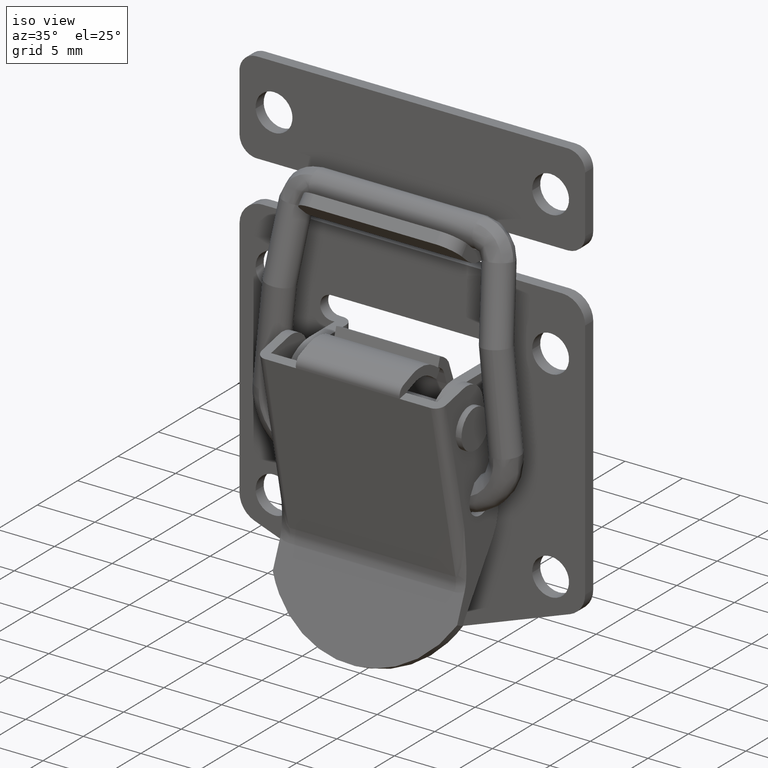
[diagram: clean part render]
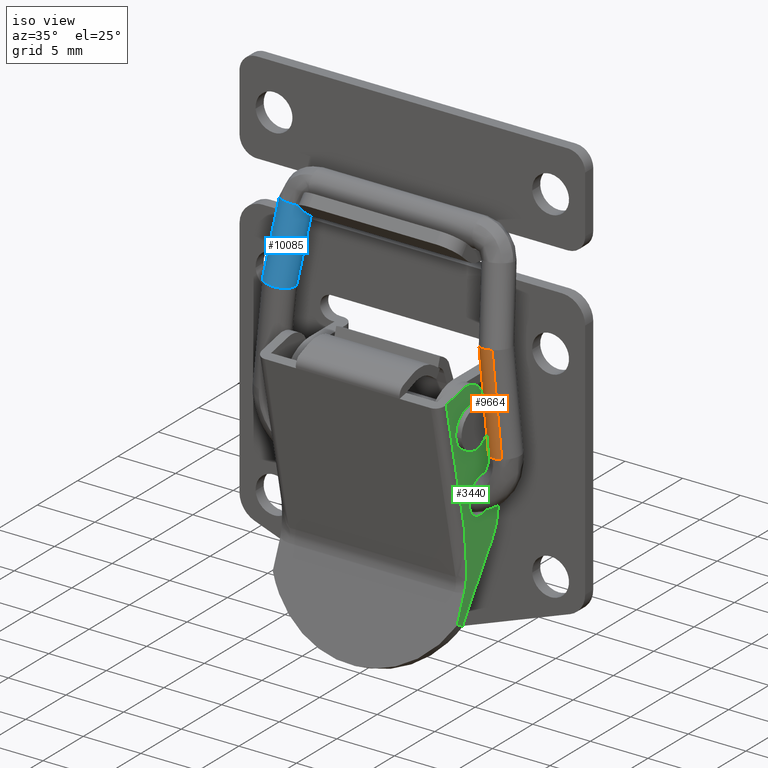
[diagram: same view with three faces highlighted in distinct colors, each labeled with its STEP entity id]
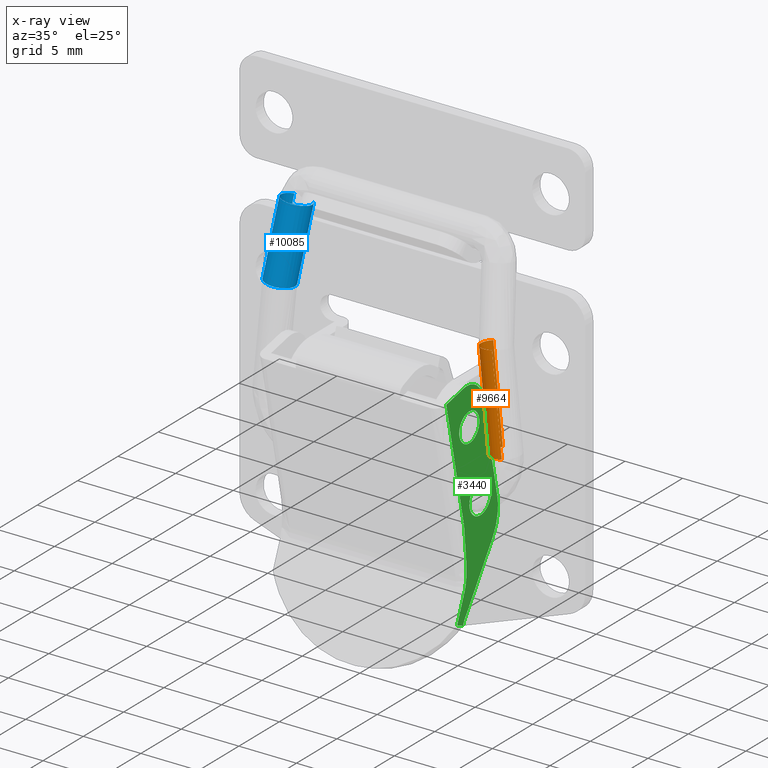
[diagram: x-ray of the same camera — body ghosted, the three highlighted faces saturated]
A machine part, iso view with three faces highlighted in distinct colors.
The next image is the same camera in x-ray (body ghosted, the three faces saturated) — at least one of them is partly hidden behind the body in this view.
Their STEP definitions:

[orange] entity #9664 — the highlighted face is a freeform B-spline surface patch.
#9456=CARTESIAN_POINT('',(-2.665735569086087,-9.837125914797973,-7.470613500350752));
#9457=VERTEX_POINT('',#9456);
#9475=CARTESIAN_POINT('',(-2.665735569077969,-10.679976843706021,-15.828468823461071));
#9476=VERTEX_POINT('',#9475);
#9477=CARTESIAN_POINT('',(-2.665735569077969,-10.679976843706021,-15.828468823461071));
#9478=CARTESIAN_POINT('',(-2.665735569086087,-9.837125914797973,-7.470613500350752));
#9479=QUASI_UNIFORM_CURVE('',1,(#9477,#9478),.UNSPECIFIED.,.F.,.U.);
#9480=EDGE_CURVE('',#9476,#9457,#9479,.T.);
#9512=CARTESIAN_POINT('',(-0.623863590414625,-9.344012778425348,-15.963194600571359));
#9513=VERTEX_POINT('',#9512);
#9529=CARTESIAN_POINT('',(-0.623863675381876,-8.521015210819833,-7.802207448867037));
#9530=VERTEX_POINT('',#9529);
#9531=CARTESIAN_POINT('',(-0.623863590414625,-9.344012778425348,-15.963194600571359));
#9532=CARTESIAN_POINT('',(-0.623863675381876,-8.521015210819833,-7.802207448867037));
#9533=QUASI_UNIFORM_CURVE('',1,(#9531,#9532),.UNSPECIFIED.,.F.,.U.);
#9534=EDGE_CURVE('',#9513,#9530,#9533,.T.);
#9567=CARTESIAN_POINT('',(-0.623863419625270,-9.365104701167297,-16.172344075138369));
#9568=CARTESIAN_POINT('',(-1.515426481067996,-8.493389487006789,-16.260252509727859));
#9569=CARTESIAN_POINT('',(-2.391563061442811,-9.380453333502798,-16.170796236784991));
#9570=CARTESIAN_POINT('',(-2.956822700822574,-9.952762949616133,-16.113081467516579));
#9571=CARTESIAN_POINT('',(-2.665735569092544,-10.701068599423301,-16.037618314871750));
#9572=CARTESIAN_POINT('',(-0.623863419625270,-8.478723667661718,-7.382836719464448));
#9573=CARTESIAN_POINT('',(-1.515426481067996,-7.607008453501211,-7.470745154053940));
#9574=CARTESIAN_POINT('',(-2.391563061442811,-8.494072299997219,-7.381288881111069));
#9575=CARTESIAN_POINT('',(-2.956822700822574,-9.066381916110553,-7.323574111842659));
#9576=CARTESIAN_POINT('',(-2.665735569092544,-9.814687565917721,-7.248110959197823));
#9584=(BOUNDED_SURFACE()B_SPLINE_SURFACE(2,1,((#9567,#9572),(#9568,#9573),(#9569,#9574),(#9570,#9575),(#9571,#9576)),.UNSPECIFIED.,.F.,.F.,.U.)B_SPLINE_SURFACE_WITH_KNOTS((3,2,3),(2,2),(0.0,1.570796326794897,2.701769682087222),(0.0,8.834088005674630),.UNSPECIFIED.)GEOMETRIC_REPRESENTATION_ITEM()RATIONAL_B_SPLINE_SURFACE(((1.0,1.0),(0.707106781186548,0.707106781186548),(1.0,1.0),(0.789116882454314,0.789116882454314),(0.881905454174416,0.881905454174416)))REPRESENTATION_ITEM('')SURFACE());
#9585=CARTESIAN_POINT('',(-2.750000000000087,-9.387406563755423,-7.507758674708748));
#9586=VERTEX_POINT('',#9585);
#9587=CARTESIAN_POINT('',(-2.750000000000087,-9.387406563755423,-7.507758674708748));
#9588=CARTESIAN_POINT('',(-2.750000000000087,-9.619685738646778,-7.484334397696326));
#9589=CARTESIAN_POINT('',(-2.665735569086087,-9.837125914797973,-7.470613500350753));
#9597=(BOUNDED_CURVE()B_SPLINE_CURVE(2,(#9587,#9588,#9589),.UNSPECIFIED.,.F.,.U.)B_SPLINE_CURVE_WITH_KNOTS((3,3),(0.0,0.061290226704729),.UNSPECIFIED.)CURVE()GEOMETRIC_REPRESENTATION_ITEM()RATIONAL_B_SPLINE_CURVE((1.0,0.928194032874583,0.891596097780119))REPRESENTATION_ITEM(''));
#9598=EDGE_CURVE('',#9586,#9457,#9597,.T.);
#9599=ORIENTED_EDGE('',*,*,#9598,.F.);
#9600=CARTESIAN_POINT('',(-0.623863675381876,-8.521015210819833,-7.802207448867037));
#9601=CARTESIAN_POINT('',(-0.988611727086130,-8.160840702515792,-7.803004549256881));
#9602=CARTESIAN_POINT('',(-1.500000145714833,-8.155868451940719,-7.753698855164799));
#9603=CARTESIAN_POINT('',(-2.750000042767775,-8.143714651657893,-7.633179675820663));
#9604=CARTESIAN_POINT('',(-2.750000000000087,-9.387406563755423,-7.507758674708748));
#9612=(BOUNDED_CURVE()B_SPLINE_CURVE(2,(#9600,#9601,#9602,#9603,#9604),.UNSPECIFIED.,.F.,.U.)B_SPLINE_CURVE_WITH_KNOTS((3,2,3),(0.626316766078469,0.750000000000000,1.0),.UNSPECIFIED.)CURVE()GEOMETRIC_REPRESENTATION_ITEM()RATIONAL_B_SPLINE_CURVE((0.853569641460995,0.855096078013862,1.0,0.707106781186547,1.0))REPRESENTATION_ITEM(''));
#9613=EDGE_CURVE('',#9530,#9586,#9612,.T.);
#9614=ORIENTED_EDGE('',*,*,#9613,.F.);
#9615=ORIENTED_EDGE('',*,*,#9534,.F.);
#9616=CARTESIAN_POINT('',(-1.500000000000085,-8.987384835530618,-15.999158873858640));
#9617=VERTEX_POINT('',#9616);
#9618=CARTESIAN_POINT('',(-1.500000000000085,-8.987384835530618,-15.999158873858640));
#9619=CARTESIAN_POINT('',(-0.988611777745030,-8.987384835530619,-15.999158873858633));
#9620=CARTESIAN_POINT('',(-0.623863590414625,-9.344012778425348,-15.963194600571354));
#9628=(BOUNDED_CURVE()B_SPLINE_CURVE(2,(#9618,#9619,#9620),.UNSPECIFIED.,.F.,.U.)B_SPLINE_CURVE_WITH_KNOTS((3,3),(0.500000000000000,0.623683184598955),.UNSPECIFIED.)CURVE()GEOMETRIC_REPRESENTATION_ITEM()RATIONAL_B_SPLINE_CURVE((1.0,0.855096135798855,0.853569642678447))REPRESENTATION_ITEM(''));
#9629=EDGE_CURVE('',#9617,#9513,#9628,.T.);
#9630=ORIENTED_EDGE('',*,*,#9629,.F.);
#9631=CARTESIAN_POINT('',(-2.720885296313254,-9.964215679411154,-15.900650016103450));
#9632=VERTEX_POINT('',#9631);
#9633=CARTESIAN_POINT('',(-2.720885296313253,-9.964215679411154,-15.900650016103441));
#9634=CARTESIAN_POINT('',(-2.505198197511082,-8.987384835530619,-15.999158873858637));
#9635=CARTESIAN_POINT('',(-1.500000000000085,-8.987384835530618,-15.999158873858640));
#9643=(BOUNDED_CURVE()B_SPLINE_CURVE(2,(#9633,#9634,#9635),.UNSPECIFIED.,.F.,.U.)B_SPLINE_CURVE_WITH_KNOTS((3,3),(0.286726879898040,0.500000000000000),.UNSPECIFIED.)CURVE()GEOMETRIC_REPRESENTATION_ITEM()RATIONAL_B_SPLINE_CURVE((0.926585904490210,0.750134997467796,1.0))REPRESENTATION_ITEM(''));
#9644=EDGE_CURVE('',#9632,#9617,#9643,.T.);
#9645=ORIENTED_EDGE('',*,*,#9644,.F.);
#9646=CARTESIAN_POINT('',(-2.665735569077968,-10.679976843706024,-15.828468823461062));
#9647=CARTESIAN_POINT('',(-2.750000000000085,-10.463355966823071,-15.850314033773842));
#9648=CARTESIAN_POINT('',(-2.750000000000085,-10.231076791908560,-15.873738310788600));
#9649=CARTESIAN_POINT('',(-2.750000000000085,-10.096074009005301,-15.887352715031479));
#9650=CARTESIAN_POINT('',(-2.720885296313253,-9.964215679411154,-15.900650016103441));
#9658=(BOUNDED_CURVE()B_SPLINE_CURVE(2,(#9646,#9647,#9648,#9649,#9650),.UNSPECIFIED.,.F.,.U.)B_SPLINE_CURVE_WITH_KNOTS((3,2,3),(0.188709773289600,0.250000000000000,0.286726879898040),.UNSPECIFIED.)CURVE()GEOMETRIC_REPRESENTATION_ITEM()RATIONAL_B_SPLINE_CURVE((0.891596097773345,0.928194032867938,1.0,0.956971783718752,0.926585904490210))REPRESENTATION_ITEM(''));
#9659=EDGE_CURVE('',#9476,#9632,#9658,.T.);
#9660=ORIENTED_EDGE('',*,*,#9659,.F.);
#9661=ORIENTED_EDGE('',*,*,#9480,.T.);
#9662=EDGE_LOOP('',(#9599,#9614,#9615,#9630,#9645,#9660,#9661));
#9663=FACE_OUTER_BOUND('',#9662,.T.);
#9664=ADVANCED_FACE('',(#9663),#9584,.T.);

[blue] entity #10085 — the highlighted face is a freeform B-spline surface patch.
#9891=CARTESIAN_POINT('',(0.559090426053287,7.914331907762819,-1.786256898987540));
#9892=VERTEX_POINT('',#9891);
#9893=CARTESIAN_POINT('',(0.621933609818012,9.622147260174559,-1.626388908902315));
#9894=VERTEX_POINT('',#9893);
#9906=CARTESIAN_POINT('',(-0.623863346662186,8.521011972913701,-7.802205059802028));
#9907=VERTEX_POINT('',#9906);
#9908=CARTESIAN_POINT('',(0.559090426053287,7.914331907762819,-1.786256898987540));
#9909=CARTESIAN_POINT('',(-0.623863346662186,8.521011972913701,-7.802205059802028));
#9910=QUASI_UNIFORM_CURVE('',1,(#9908,#9909),.UNSPECIFIED.,.F.,.U.);
#9911=EDGE_CURVE('',#9892,#9907,#9910,.T.);
#9928=CARTESIAN_POINT('',(-0.559788230269742,10.228254284312211,-7.636278146659118));
#9929=VERTEX_POINT('',#9928);
#9943=CARTESIAN_POINT('',(0.621933609818012,9.622147260174559,-1.626388908902315));
#9944=CARTESIAN_POINT('',(-0.559788230269742,10.228254284312211,-7.636278146659118));
#9945=QUASI_UNIFORM_CURVE('',1,(#9943,#9944),.UNSPECIFIED.,.F.,.U.);
#9946=EDGE_CURVE('',#9894,#9929,#9945,.T.);
#9951=CARTESIAN_POINT('',(0.589654437325110,7.898657320822148,-1.630829054097556));
#9952=CARTESIAN_POINT('',(-0.285320318797206,7.009766139034172,-1.548417628383229));
#9953=CARTESIAN_POINT('',(-1.145155616933888,7.879951209151303,-1.291588494865547));
#9954=CARTESIAN_POINT('',(-2.004990915070571,8.750136279268434,-1.034759361347864));
#9955=CARTESIAN_POINT('',(-1.130016158948256,9.639027461056410,-1.117170787062190));
#9956=CARTESIAN_POINT('',(-0.255041402825940,10.527918642844385,-1.199582212776516));
#9957=CARTESIAN_POINT('',(0.604793895310743,9.657733572727254,-1.456411346294199));
#9958=CARTESIAN_POINT('',(0.629402012133185,9.632829249877295,-1.463761685754216));
#9959=CARTESIAN_POINT('',(0.652537674679100,9.606510736980404,-1.470965101457707));
#9960=CARTESIAN_POINT('',(-0.694748949693727,8.557365747065635,-8.162695530090796));
#9961=CARTESIAN_POINT('',(-1.569723705816043,7.668474565277659,-8.080284104376469));
#9962=CARTESIAN_POINT('',(-2.429559003952726,8.538659635394790,-7.823454970858786));
#9963=CARTESIAN_POINT('',(-3.289394302089407,9.408844705511921,-7.566625837341103));
#9964=CARTESIAN_POINT('',(-2.414419545967093,10.297735887299901,-7.649037263055429));
#9965=CARTESIAN_POINT('',(-1.539444789844776,11.186627069087873,-7.731448688769754));
#9966=CARTESIAN_POINT('',(-0.679609491708094,10.316441998970740,-7.988277822287437));
#9967=CARTESIAN_POINT('',(-0.655001374885652,10.291537676120777,-7.995628161747455));
#9968=CARTESIAN_POINT('',(-0.631865712339737,10.265219163223890,-8.002831577450948));
#9976=(BOUNDED_SURFACE()B_SPLINE_SURFACE(2,1,((#9951,#9960),(#9952,#9961),(#9953,#9962),(#9954,#9963),(#9955,#9964),(#9956,#9965),(#9957,#9966),(#9958,#9967),(#9959,#9968)),.UNSPECIFIED.,.F.,.F.,.U.)B_SPLINE_SURFACE_WITH_KNOTS((3,2,2,2,3),(2,2),(0.0,1.570796326794897,3.141592653589793,4.712388980384690,4.775220833456485),(0.0,6.689459508181060),.UNSPECIFIED.)GEOMETRIC_REPRESENTATION_ITEM()RATIONAL_B_SPLINE_SURFACE(((1.0,1.0),(0.707106781186548,0.707106781186548),(1.0,1.0),(0.707106781186548,0.707106781186548),(1.0,1.0),(0.707106781186548,0.707106781186548),(1.0,1.0),(0.988284271247462,0.988284271247462),(0.977505800795127,0.977505800795127)))REPRESENTATION_ITEM('')SURFACE());
#9977=CARTESIAN_POINT('',(-0.300743701668693,10.028208551392041,-1.404007471156516));
#9978=VERTEX_POINT('',#9977);
#9979=CARTESIAN_POINT('',(0.621933609818012,9.622147260174559,-1.626388908902315));
#9980=CARTESIAN_POINT('',(0.604217606075224,9.642401721561649,-1.620862727415135));
#9981=CARTESIAN_POINT('',(0.585809940701126,9.662037974577606,-1.615262883448715));
#9982=CARTESIAN_POINT('',(0.339625690324634,9.906765680269512,-1.542174419585707));
#9983=CARTESIAN_POINT('',(0.020428740616923,10.034523817668290,-1.466524832017987));
#9984=CARTESIAN_POINT('',(-0.300743701668693,10.028208551392041,-1.404007471156516));
#9985=B_SPLINE_CURVE_WITH_KNOTS('',3,(#9979,#9980,#9981,#9982,#9983,#9984),.UNSPECIFIED.,.F.,.U.,(4,2,4),(0.864499884512398,0.875000000000000,1.0),.UNSPECIFIED.);
#9986=EDGE_CURVE('',#9894,#9978,#9985,.T.);
#9987=ORIENTED_EDGE('',*,*,#9986,.F.);
#9988=ORIENTED_EDGE('',*,*,#9946,.T.);
#9989=CARTESIAN_POINT('',(-2.749999999990737,9.387403500647142,-7.507758674654645));
#9990=VERTEX_POINT('',#9989);
#9991=CARTESIAN_POINT('',(-2.749999999990737,9.387403500647142,-7.507758674654645));
#9992=CARTESIAN_POINT('',(-2.749999999990711,10.631095457025085,-7.382338111584609));
#9993=CARTESIAN_POINT('',(-1.499999999990708,10.643249150719511,-7.502856236508315));
#9994=CARTESIAN_POINT('',(-0.933255962445846,10.648759577467883,-7.557498579481591));
#9995=CARTESIAN_POINT('',(-0.559788230269742,10.228254284312214,-7.636278146659118));
#10003=(BOUNDED_CURVE()B_SPLINE_CURVE(2,(#9991,#9992,#9993,#9994,#9995),.UNSPECIFIED.,.F.,.U.)B_SPLINE_CURVE_WITH_KNOTS((3,2,3),(0.0,0.250000000000000,0.384954613369994),.UNSPECIFIED.)CURVE()GEOMETRIC_REPRESENTATION_ITEM()RATIONAL_B_SPLINE_CURVE((1.0,0.707106781186547,1.0,0.841890835585350,0.854482160401355))REPRESENTATION_ITEM(''));
#10004=EDGE_CURVE('',#9990,#9929,#10003,.T.);
#10005=ORIENTED_EDGE('',*,*,#10004,.F.);
#10006=CARTESIAN_POINT('',(-2.495381589901699,8.637576269852023,-7.608175071378957));
#10007=VERTEX_POINT('',#10006);
#10008=CARTESIAN_POINT('',(-2.495381589901699,8.637576269852024,-7.608175071378958));
#10009=CARTESIAN_POINT('',(-2.750000021694345,8.968597789092144,-7.549993902637190));
#10010=CARTESIAN_POINT('',(-2.749999999990737,9.387403500647142,-7.507758674654645));
#10018=(BOUNDED_CURVE()B_SPLINE_CURVE(2,(#10008,#10009,#10010),.UNSPECIFIED.,.F.,.U.)B_SPLINE_CURVE_WITH_KNOTS((3,3),(0.895516751972892,1.0),.UNSPECIFIED.)CURVE()GEOMETRIC_REPRESENTATION_ITEM()RATIONAL_B_SPLINE_CURVE((0.857498658609603,0.877590260693024,1.0))REPRESENTATION_ITEM(''));
#10019=EDGE_CURVE('',#10007,#9990,#10018,.T.);
#10020=ORIENTED_EDGE('',*,*,#10019,.F.);
#10021=CARTESIAN_POINT('',(-0.688190985470267,8.461738481876349,-7.801915380660550));
#10022=VERTEX_POINT('',#10021);
#10023=CARTESIAN_POINT('',(-0.688190985470267,8.461738481876349,-7.801915380660550));
#10024=CARTESIAN_POINT('',(-1.038851432757227,8.160348898854197,-7.798157147542378));
#10025=CARTESIAN_POINT('',(-1.499999947458240,8.155865247831278,-7.753696612306171));
#10026=CARTESIAN_POINT('',(-2.120215994865505,8.149835016296883,-7.693899959924691));
#10027=CARTESIAN_POINT('',(-2.495381589901699,8.637576269852023,-7.608175071378957));
#10035=(BOUNDED_CURVE()B_SPLINE_CURVE(2,(#10023,#10024,#10025,#10026,#10027),.UNSPECIFIED.,.F.,.U.)B_SPLINE_CURVE_WITH_KNOTS((3,2,3),(0.636857024645209,0.750000000000000,0.895516751972892),.UNSPECIFIED.)CURVE()GEOMETRIC_REPRESENTATION_ITEM()RATIONAL_B_SPLINE_CURVE((0.854871072978338,0.867444759048817,1.0,0.829516520493524,0.857498658609603))REPRESENTATION_ITEM(''));
#10036=EDGE_CURVE('',#10022,#10007,#10035,.T.);
#10037=ORIENTED_EDGE('',*,*,#10036,.F.);
#10038=CARTESIAN_POINT('',(-0.623863346662186,8.521011972913701,-7.802205059802028));
#10039=CARTESIAN_POINT('',(-0.654997937476360,8.490267695475254,-7.802272151578212));
#10040=CARTESIAN_POINT('',(-0.688190985470267,8.461738481876349,-7.801915380660550));
#10048=(BOUNDED_CURVE()B_SPLINE_CURVE(2,(#10038,#10039,#10040),.UNSPECIFIED.,.F.,.U.)B_SPLINE_CURVE_WITH_KNOTS((3,3),(0.626316751730463,0.636857024645209),.UNSPECIFIED.)CURVE()GEOMETRIC_REPRESENTATION_ITEM()RATIONAL_B_SPLINE_CURVE((0.853569641106845,0.853699722460892,0.854871072978338))REPRESENTATION_ITEM(''));
#10049=EDGE_CURVE('',#9907,#10022,#10048,.T.);
#10050=ORIENTED_EDGE('',*,*,#10049,.F.);
#10051=ORIENTED_EDGE('',*,*,#9911,.F.);
#10052=CARTESIAN_POINT('',(-0.300743701668655,7.540824638636140,-1.654848597296395));
#10053=VERTEX_POINT('',#10052);
#10054=CARTESIAN_POINT('',(-0.300743701668655,7.540824638636140,-1.654848597296395));
#10055=CARTESIAN_POINT('',(0.016848153817867,7.547058791063718,-1.716670064043462));
#10056=CARTESIAN_POINT('',(0.332506104904079,7.684329085796945,-1.764896867646791));
#10057=CARTESIAN_POINT('',(0.559090426053287,7.914331907762819,-1.786256898987540));
#10058=B_SPLINE_CURVE_WITH_KNOTS('',3,(#10054,#10055,#10056,#10057),.UNSPECIFIED.,.F.,.U.,(4,4),(0.500000000000000,0.623610948308786),.UNSPECIFIED.);
#10059=EDGE_CURVE('',#10053,#9892,#10058,.T.);
#10060=ORIENTED_EDGE('',*,*,#10059,.F.);
#10061=CARTESIAN_POINT('',(-1.194975123899901,9.618315640442347,-1.269504728881935));
#10062=VERTEX_POINT('',#10061);
#10063=CARTESIAN_POINT('',(-1.194975123899901,9.618315640442347,-1.269504728881935));
#10064=CARTESIAN_POINT('',(-1.405641633252141,9.386127485890823,-1.251495101052143));
#10065=CARTESIAN_POINT('',(-1.527486365707520,9.073009385147529,-1.259112486449652));
#10066=CARTESIAN_POINT('',(-1.527486365707510,8.434837544864640,-1.323469155424792));
#10067=CARTESIAN_POINT('',(-1.395276510330094,8.113840040485171,-1.381837548040126));
#10068=CARTESIAN_POINT('',(-0.941087006032661,7.662291076662929,-1.516684402034490));
#10069=CARTESIAN_POINT('',(-0.621904180101122,7.534520180202130,-1.592332499044445));
#10070=CARTESIAN_POINT('',(-0.300743701668655,7.540824638636140,-1.654848597296395));
#10071=B_SPLINE_CURVE_WITH_KNOTS('',3,(#10063,#10064,#10065,#10066,#10067,#10068,#10069,#10070),.UNSPECIFIED.,.F.,.U.,(4,2,2,4),(0.129999936112298,0.250000000000000,0.375000000000000,0.500000000000000),.UNSPECIFIED.);
#10072=EDGE_CURVE('',#10062,#10053,#10071,.T.);
#10073=ORIENTED_EDGE('',*,*,#10072,.F.);
#10074=CARTESIAN_POINT('',(-0.300743701668693,10.028208551392041,-1.404007471156516));
#10075=CARTESIAN_POINT('',(-0.621904180101160,10.021904092958019,-1.341491372904564));
#10076=CARTESIAN_POINT('',(-0.941087006032695,9.881601923229990,-1.292877200760706));
#10077=CARTESIAN_POINT('',(-1.177265432198859,9.637524097347406,-1.271050016989475));
#10078=CARTESIAN_POINT('',(-1.186197294261120,9.627990211265585,-1.270255135035396));
#10079=CARTESIAN_POINT('',(-1.194975123899901,9.618315640442347,-1.269504728881935));
#10080=B_SPLINE_CURVE_WITH_KNOTS('',3,(#10074,#10075,#10076,#10077,#10078,#10079),.UNSPECIFIED.,.F.,.U.,(4,2,4),(0.0,0.125000000000000,0.129999936112298),.UNSPECIFIED.);
#10081=EDGE_CURVE('',#9978,#10062,#10080,.T.);
#10082=ORIENTED_EDGE('',*,*,#10081,.F.);
#10083=EDGE_LOOP('',(#9987,#9988,#10005,#10020,#10037,#10050,#10051,#10060,#10073,#10082));
#10084=FACE_OUTER_BOUND('',#10083,.T.);
#10085=ADVANCED_FACE('',(#10084),#9976,.T.);

[green] entity #3440 — the highlighted face is a freeform B-spline surface patch.
#1287=CARTESIAN_POINT('',(-4.108363288911000,-8.0,-14.009751479011360));
#1288=VERTEX_POINT('',#1287);
#1294=CARTESIAN_POINT('',(-2.860694790894970,-8.0,-15.183440804407979));
#1295=VERTEX_POINT('',#1294);
#1296=CARTESIAN_POINT('',(-2.860694790894970,-8.0,-15.183440804407979));
#1297=CARTESIAN_POINT('',(-4.036577374178090,-8.0,-15.183440804407981));
#1298=CARTESIAN_POINT('',(-4.108363288911000,-8.0,-14.009751479011365));
#1306=(BOUNDED_CURVE()B_SPLINE_CURVE(2,(#1296,#1297,#1298),.UNSPECIFIED.,.F.,.U.)B_SPLINE_CURVE_WITH_KNOTS((3,3),(0.500000000000000,0.739332962190852),.UNSPECIFIED.)CURVE()GEOMETRIC_REPRESENTATION_ITEM()RATIONAL_B_SPLINE_CURVE((1.0,0.719603993343052,0.976072041563651))REPRESENTATION_ITEM(''));
#1307=EDGE_CURVE('',#1295,#1288,#1306,.T.);
#1309=CARTESIAN_POINT('',(-1.619432882943403,-8.0,-13.785898011061651));
#1310=VERTEX_POINT('',#1309);
#1311=CARTESIAN_POINT('',(-1.619432882943403,-8.0,-13.785898011061651));
#1312=CARTESIAN_POINT('',(-1.610694790894970,-8.0,-13.859410654817445));
#1313=CARTESIAN_POINT('',(-1.610694790894970,-8.0,-13.933440804407979));
#1314=CARTESIAN_POINT('',(-1.610694790894969,-8.0,-15.183440804407979));
#1315=CARTESIAN_POINT('',(-2.860694790894970,-8.0,-15.183440804407979));
#1323=(BOUNDED_CURVE()B_SPLINE_CURVE(2,(#1311,#1312,#1313,#1314,#1315),.UNSPECIFIED.,.F.,.U.)B_SPLINE_CURVE_WITH_KNOTS((3,2,3),(0.229562473508734,0.250000000000000,0.500000000000000),.UNSPECIFIED.)CURVE()GEOMETRIC_REPRESENTATION_ITEM()RATIONAL_B_SPLINE_CURVE((0.956026754174341,0.976055948325551,1.0,0.707106781186548,1.0))REPRESENTATION_ITEM(''));
#1324=EDGE_CURVE('',#1310,#1295,#1323,.T.);
#1368=CARTESIAN_POINT('',(-2.860694790894970,-8.0,-12.683440804407979));
#1369=VERTEX_POINT('',#1368);
#1370=CARTESIAN_POINT('',(-2.860694790894970,-8.0,-12.683440804407979));
#1371=CARTESIAN_POINT('',(-1.750476633501477,-8.0,-12.683440804407979));
#1372=CARTESIAN_POINT('',(-1.619432882943403,-8.0,-13.785898011061651));
#1380=(BOUNDED_CURVE()B_SPLINE_CURVE(2,(#1370,#1371,#1372),.UNSPECIFIED.,.F.,.U.)B_SPLINE_CURVE_WITH_KNOTS((3,3),(0.0,0.229562473508734),.UNSPECIFIED.)CURVE()GEOMETRIC_REPRESENTATION_ITEM()RATIONAL_B_SPLINE_CURVE((1.0,0.731050832860996,0.956026754174341))REPRESENTATION_ITEM(''));
#1381=EDGE_CURVE('',#1369,#1310,#1380,.T.);
#1383=CARTESIAN_POINT('',(-4.108363288911000,-8.0,-14.009751479011356));
#1384=CARTESIAN_POINT('',(-4.110694790894970,-8.0,-13.971631758716542));
#1385=CARTESIAN_POINT('',(-4.110694790894970,-8.0,-13.933440804407979));
#1386=CARTESIAN_POINT('',(-4.110694790894970,-8.0,-12.683440804407979));
#1387=CARTESIAN_POINT('',(-2.860694790894970,-8.0,-12.683440804407979));
#1395=(BOUNDED_CURVE()B_SPLINE_CURVE(2,(#1383,#1384,#1385,#1386,#1387),.UNSPECIFIED.,.F.,.U.)B_SPLINE_CURVE_WITH_KNOTS((3,2,3),(0.739332962190852,0.750000000000000,1.0),.UNSPECIFIED.)CURVE()GEOMETRIC_REPRESENTATION_ITEM()RATIONAL_B_SPLINE_CURVE((0.976072041563649,0.987502787843495,1.0,0.707106781186548,1.0))REPRESENTATION_ITEM(''));
#1396=EDGE_CURVE('',#1288,#1369,#1395,.T.);
#1659=CARTESIAN_POINT('',(-2.847481977861532,-8.0,-20.082415528504061));
#1660=VERTEX_POINT('',#1659);
#1666=CARTESIAN_POINT('',(-1.500000000000085,-8.0,-21.350000000000001));
#1667=VERTEX_POINT('',#1666);
#1668=CARTESIAN_POINT('',(-1.500000000000085,-8.0,-21.350000000000001));
#1669=CARTESIAN_POINT('',(-2.769953190073500,-8.0,-21.349999999999998));
#1670=CARTESIAN_POINT('',(-2.847481977861532,-8.0,-20.082415528504054));
#1678=(BOUNDED_CURVE()B_SPLINE_CURVE(2,(#1668,#1669,#1670),.UNSPECIFIED.,.F.,.U.)B_SPLINE_CURVE_WITH_KNOTS((3,3),(0.500000000000000,0.739332962208163),.UNSPECIFIED.)CURVE()GEOMETRIC_REPRESENTATION_ITEM()RATIONAL_B_SPLINE_CURVE((1.0,0.719603993322771,0.976072041600751))REPRESENTATION_ITEM(''));
#1679=EDGE_CURVE('',#1667,#1660,#1678,.T.);
#1681=CARTESIAN_POINT('',(-0.159437139421395,-8.0,-19.840653783110231));
#1682=VERTEX_POINT('',#1681);
#1683=CARTESIAN_POINT('',(-0.159437139421395,-8.0,-19.840653783110231));
#1684=CARTESIAN_POINT('',(-0.150000000000085,-8.0,-19.920047438365685));
#1685=CARTESIAN_POINT('',(-0.150000000000085,-8.0,-20.0));
#1686=CARTESIAN_POINT('',(-0.150000000000085,-8.0,-21.349999999999998));
#1687=CARTESIAN_POINT('',(-1.500000000000085,-8.0,-21.350000000000001));
#1695=(BOUNDED_CURVE()B_SPLINE_CURVE(2,(#1683,#1684,#1685,#1686,#1687),.UNSPECIFIED.,.F.,.U.)B_SPLINE_CURVE_WITH_KNOTS((3,2,3),(0.229562473489639,0.250000000000000,0.500000000000000),.UNSPECIFIED.)CURVE()GEOMETRIC_REPRESENTATION_ITEM()RATIONAL_B_SPLINE_CURVE((0.956026754136914,0.976055948303180,1.0,0.707106781186548,1.0))REPRESENTATION_ITEM(''));
#1696=EDGE_CURVE('',#1682,#1667,#1695,.T.);
#1740=CARTESIAN_POINT('',(-1.500000000000085,-8.0,-18.649999999999999));
#1741=VERTEX_POINT('',#1740);
#1742=CARTESIAN_POINT('',(-1.500000000000085,-8.0,-18.649999999999999));
#1743=CARTESIAN_POINT('',(-0.300964390151542,-8.000000000000002,-18.650000000000002));
#1744=CARTESIAN_POINT('',(-0.159437139421395,-8.0,-19.840653783110234));
#1752=(BOUNDED_CURVE()B_SPLINE_CURVE(2,(#1742,#1743,#1744),.UNSPECIFIED.,.F.,.U.)B_SPLINE_CURVE_WITH_KNOTS((3,3),(0.0,0.229562473489639),.UNSPECIFIED.)CURVE()GEOMETRIC_REPRESENTATION_ITEM()RATIONAL_B_SPLINE_CURVE((1.0,0.731050832883368,0.956026754136913))REPRESENTATION_ITEM(''));
#1753=EDGE_CURVE('',#1741,#1682,#1752,.T.);
#1755=CARTESIAN_POINT('',(-2.847481977861532,-8.0,-20.082415528504065));
#1756=CARTESIAN_POINT('',(-2.850000000000084,-8.0,-20.041246230585465));
#1757=CARTESIAN_POINT('',(-2.850000000000085,-8.0,-20.0));
#1758=CARTESIAN_POINT('',(-2.850000000000084,-8.0,-18.649999999999999));
#1759=CARTESIAN_POINT('',(-1.500000000000085,-8.0,-18.649999999999999));
#1767=(BOUNDED_CURVE()B_SPLINE_CURVE(2,(#1755,#1756,#1757,#1758,#1759),.UNSPECIFIED.,.F.,.U.)B_SPLINE_CURVE_WITH_KNOTS((3,2,3),(0.739332962208163,0.750000000000000,1.0),.UNSPECIFIED.)CURVE()GEOMETRIC_REPRESENTATION_ITEM()RATIONAL_B_SPLINE_CURVE((0.976072041600750,0.987502787863776,1.0,0.707106781186548,1.0))REPRESENTATION_ITEM(''));
#1768=EDGE_CURVE('',#1660,#1741,#1767,.T.);
#1991=CARTESIAN_POINT('',(-3.641978941189605,-8.0,-29.224509765076149));
#1992=VERTEX_POINT('',#1991);
#2008=CARTESIAN_POINT('',(-4.371580289002230,-8.0,-28.894773704005601));
#2009=VERTEX_POINT('',#2008);
#2010=CARTESIAN_POINT('',(-4.371580289002230,-8.0,-28.894773704005601));
#2011=CARTESIAN_POINT('',(-3.641978941189605,-8.0,-29.224509765076149));
#2012=QUASI_UNIFORM_CURVE('',1,(#2010,#2011),.UNSPECIFIED.,.F.,.U.);
#2013=EDGE_CURVE('',#2009,#1992,#2012,.T.);
#2169=CARTESIAN_POINT('',(-3.512470993988905,-8.0,-21.429467577154099));
#2170=VERTEX_POINT('',#2169);
#2171=CARTESIAN_POINT('',(-3.454185830523615,-8.0,-26.624142172437448));
#2172=VERTEX_POINT('',#2171);
#2173=CARTESIAN_POINT('',(-3.512470993988905,-8.0,-21.429467577154099));
#2174=CARTESIAN_POINT('',(-3.500633632794143,-8.0,-21.537929959951459));
#2175=CARTESIAN_POINT('',(-3.488825989011703,-8.0,-21.646118562584650));
#2176=CARTESIAN_POINT('',(-3.465280324558724,-8.0,-21.862753233958980));
#2177=CARTESIAN_POINT('',(-3.453555794553679,-8.000000000000002,-21.971073719393051));
#2178=CARTESIAN_POINT('',(-3.418680230244931,-8.0,-22.296054609699041));
#2179=CARTESIAN_POINT('',(-3.395817929859113,-7.999999999999998,-22.512733842665028));
#2180=CARTESIAN_POINT('',(-3.351837356744947,-8.0,-22.946206035162540));
#2181=CARTESIAN_POINT('',(-3.330707141642842,-8.0,-23.162998215941979));
#2182=CARTESIAN_POINT('',(-3.291575889618473,-8.0,-23.596786628558050));
#2183=CARTESIAN_POINT('',(-3.273548259482809,-8.0,-23.813781126273760));
#2184=CARTESIAN_POINT('',(-3.242969538807702,-8.0,-24.248127242211030));
#2185=CARTESIAN_POINT('',(-3.230352557616322,-8.0,-24.465474563758971));
#2186=CARTESIAN_POINT('',(-3.215171108588335,-8.0,-24.900824722731450));
#2187=CARTESIAN_POINT('',(-3.212457690161398,-8.000000000000002,-25.118817847214210));
#2188=CARTESIAN_POINT('',(-3.223327644942243,-8.0,-25.446781764051600));
#2189=CARTESIAN_POINT('',(-3.229511773054514,-8.0,-25.556406956805269));
#2190=CARTESIAN_POINT('',(-3.249113320467211,-8.0,-25.775546076542561));
#2191=CARTESIAN_POINT('',(-3.262476997634922,-8.0,-25.884329159427850));
#2192=CARTESIAN_POINT('',(-3.316582028534222,-8.000000000000002,-26.207584951275450));
#2193=CARTESIAN_POINT('',(-3.371292567559284,-7.999999999999998,-26.418974095715530));
#2194=CARTESIAN_POINT('',(-3.454185830523615,-8.0,-26.624142172437448));
#2195=B_SPLINE_CURVE_WITH_KNOTS('',3,(#2173,#2174,#2175,#2176,#2177,#2178,#2179,#2180,#2181,#2182,#2183,#2184,#2185,#2186,#2187,#2188,#2189,#2190,#2191,#2192,#2193,#2194),.UNSPECIFIED.,.F.,.U.,(4,2,2,2,2,2,2,2,2,2,4),(0.0,0.062500000000001,0.125000000000002,0.250000000000002,0.375000000000002,0.500000000000002,0.625000000000002,0.750000000000002,0.812500000000002,0.875000000000002,1.0),.UNSPECIFIED.);
#2196=EDGE_CURVE('',#2170,#2172,#2195,.T.);
#2815=CARTESIAN_POINT('',(-5.717573658600290,-8.0,-11.083239632152400));
#2816=VERTEX_POINT('',#2815);
#2817=CARTESIAN_POINT('',(-5.717573658600290,-8.0,-11.083239632152400));
#2818=CARTESIAN_POINT('',(-3.512470993988905,-8.0,-21.429467577154099));
#2819=QUASI_UNIFORM_CURVE('',1,(#2817,#2818),.UNSPECIFIED.,.F.,.U.);
#2820=EDGE_CURVE('',#2816,#2170,#2819,.T.);
#2897=CARTESIAN_POINT('',(-1.194027587472982,-8.0,-12.158729608706420));
#2898=VERTEX_POINT('',#2897);
#2921=CARTESIAN_POINT('',(-3.565901667554635,-8.0,-10.624652879647000));
#2922=VERTEX_POINT('',#2921);
#2928=CARTESIAN_POINT('',(-1.194027587472982,-8.0,-12.158729608706420));
#2929=CARTESIAN_POINT('',(-1.614920074791598,-8.0,-10.208836886023423));
#2930=CARTESIAN_POINT('',(-3.565901667554638,-8.0,-10.624652879646989));
#2938=(BOUNDED_CURVE()B_SPLINE_CURVE(2,(#2928,#2929,#2930),.UNSPECIFIED.,.F.,.U.)CURVE()GEOMETRIC_REPRESENTATION_ITEM()QUASI_UNIFORM_CURVE()RATIONAL_B_SPLINE_CURVE((1.0,0.708026391527671,1.0))REPRESENTATION_ITEM(''));
#2939=EDGE_CURVE('',#2898,#2922,#2938,.T.);
#2949=CARTESIAN_POINT('',(0.612129211600738,-8.0,-20.633073528331799));
#2950=VERTEX_POINT('',#2949);
#2964=CARTESIAN_POINT('',(0.612129211600738,-8.0,-20.633073528331799));
#2965=CARTESIAN_POINT('',(-1.194027587472982,-8.0,-12.158729608706420));
#2966=QUASI_UNIFORM_CURVE('',1,(#2964,#2965),.UNSPECIFIED.,.F.,.U.);
#2967=EDGE_CURVE('',#2950,#2898,#2966,.T.);
#2986=CARTESIAN_POINT('',(0.007430966477396,-8.0,-23.716522049284549));
#2987=VERTEX_POINT('',#2986);
#3009=CARTESIAN_POINT('',(0.007430966477390,-8.0,-23.716522049284549));
#3010=CARTESIAN_POINT('',(0.968253392849160,-8.000000000000002,-22.303931662316625));
#3011=CARTESIAN_POINT('',(0.612129211600734,-8.0,-20.633073528331799));
#3019=(BOUNDED_CURVE()B_SPLINE_CURVE(2,(#3009,#3010,#3011),.UNSPECIFIED.,.F.,.U.)CURVE()GEOMETRIC_REPRESENTATION_ITEM()QUASI_UNIFORM_CURVE()RATIONAL_B_SPLINE_CURVE((1.0,0.919633643323576,1.0))REPRESENTATION_ITEM(''));
#3020=EDGE_CURVE('',#2987,#2950,#3019,.T.);
#3044=CARTESIAN_POINT('',(-3.500007961032055,-8.0,-28.873119704220400));
#3045=VERTEX_POINT('',#3044);
#3046=CARTESIAN_POINT('',(-3.500007961032055,-8.0,-28.873119704220400));
#3047=CARTESIAN_POINT('',(0.007430966477396,-8.0,-23.716522049284549));
#3048=QUASI_UNIFORM_CURVE('',1,(#3046,#3047),.UNSPECIFIED.,.F.,.U.);
#3049=EDGE_CURVE('',#3045,#2987,#3048,.T.);
#3092=CARTESIAN_POINT('',(-3.565901667554635,-8.0,-10.624652879647000));
#3093=CARTESIAN_POINT('',(-5.717573658600290,-8.0,-11.083239632152400));
#3094=QUASI_UNIFORM_CURVE('',1,(#3092,#3093),.UNSPECIFIED.,.F.,.U.);
#3095=EDGE_CURVE('',#2922,#2816,#3094,.T.);
#3403=CARTESIAN_POINT('',(-6.038128721245985,-8.0,-9.649462673441036));
#3404=CARTESIAN_POINT('',(1.020500596874144,-8.0,-9.649462673441036));
#3405=CARTESIAN_POINT('',(-6.038128721245985,-8.0,-30.155767530797281));
#3406=CARTESIAN_POINT('',(1.020500596874144,-8.0,-30.155767530797281));
#3407=B_SPLINE_SURFACE_WITH_KNOTS('',1,1,((#3403,#3405),(#3404,#3406)),.UNSPECIFIED.,.F.,.F.,.U.,(2,2),(2,2),(0.0,7.058629318120129),(0.0,20.506304857356248),.UNSPECIFIED.);
#3408=CARTESIAN_POINT('',(-3.454185830523615,-8.0,-26.624142172437448));
#3409=CARTESIAN_POINT('',(-4.371580289002230,-8.0,-28.894773704005601));
#3410=QUASI_UNIFORM_CURVE('',1,(#3408,#3409),.UNSPECIFIED.,.F.,.U.);
#3411=EDGE_CURVE('',#2172,#2009,#3410,.T.);
#3412=ORIENTED_EDGE('',*,*,#3411,.T.);
#3413=ORIENTED_EDGE('',*,*,#2013,.T.);
#3414=CARTESIAN_POINT('',(-3.641978941189605,-8.0,-29.224509765076149));
#3415=CARTESIAN_POINT('',(-3.500007961032055,-8.0,-28.873119704220400));
#3416=QUASI_UNIFORM_CURVE('',1,(#3414,#3415),.UNSPECIFIED.,.F.,.U.);
#3417=EDGE_CURVE('',#1992,#3045,#3416,.T.);
#3418=ORIENTED_EDGE('',*,*,#3417,.T.);
#3419=ORIENTED_EDGE('',*,*,#3049,.T.);
#3420=ORIENTED_EDGE('',*,*,#3020,.T.);
#3421=ORIENTED_EDGE('',*,*,#2967,.T.);
#3422=ORIENTED_EDGE('',*,*,#2939,.T.);
#3423=ORIENTED_EDGE('',*,*,#3095,.T.);
#3424=ORIENTED_EDGE('',*,*,#2820,.T.);
#3425=ORIENTED_EDGE('',*,*,#2196,.T.);
#3426=EDGE_LOOP('',(#3412,#3413,#3418,#3419,#3420,#3421,#3422,#3423,#3424,#3425));
#3427=FACE_OUTER_BOUND('',#3426,.T.);
#3428=ORIENTED_EDGE('',*,*,#1679,.T.);
#3429=ORIENTED_EDGE('',*,*,#1768,.T.);
#3430=ORIENTED_EDGE('',*,*,#1753,.T.);
#3431=ORIENTED_EDGE('',*,*,#1696,.T.);
#3432=EDGE_LOOP('',(#3428,#3429,#3430,#3431));
#3433=FACE_BOUND('',#3432,.T.);
#3434=ORIENTED_EDGE('',*,*,#1307,.T.);
#3435=ORIENTED_EDGE('',*,*,#1396,.T.);
#3436=ORIENTED_EDGE('',*,*,#1381,.T.);
#3437=ORIENTED_EDGE('',*,*,#1324,.T.);
#3438=EDGE_LOOP('',(#3434,#3435,#3436,#3437));
#3439=FACE_BOUND('',#3438,.T.);
#3440=ADVANCED_FACE('',(#3427,#3433,#3439),#3407,.F.);